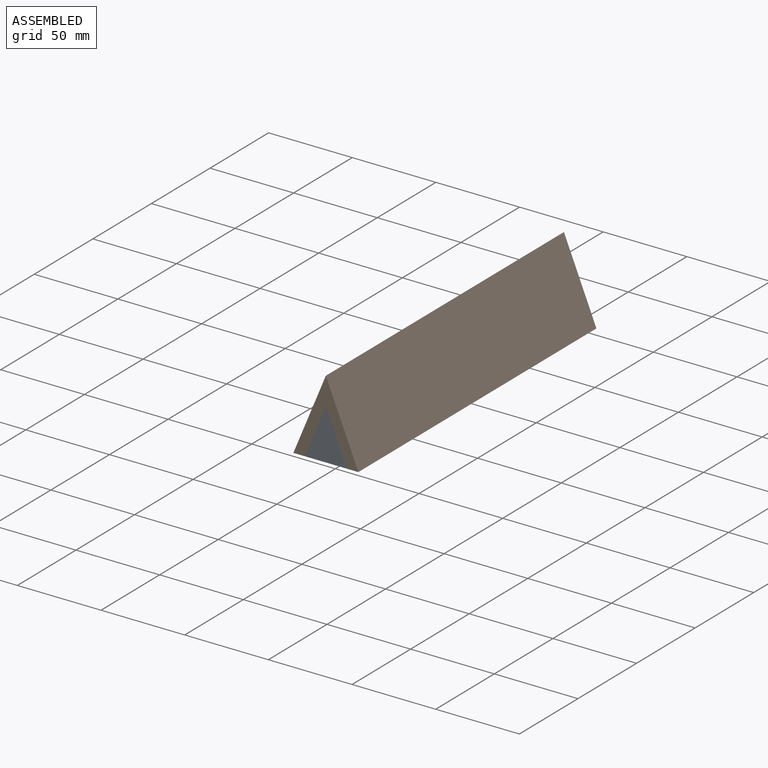
[diagram: assembled view]
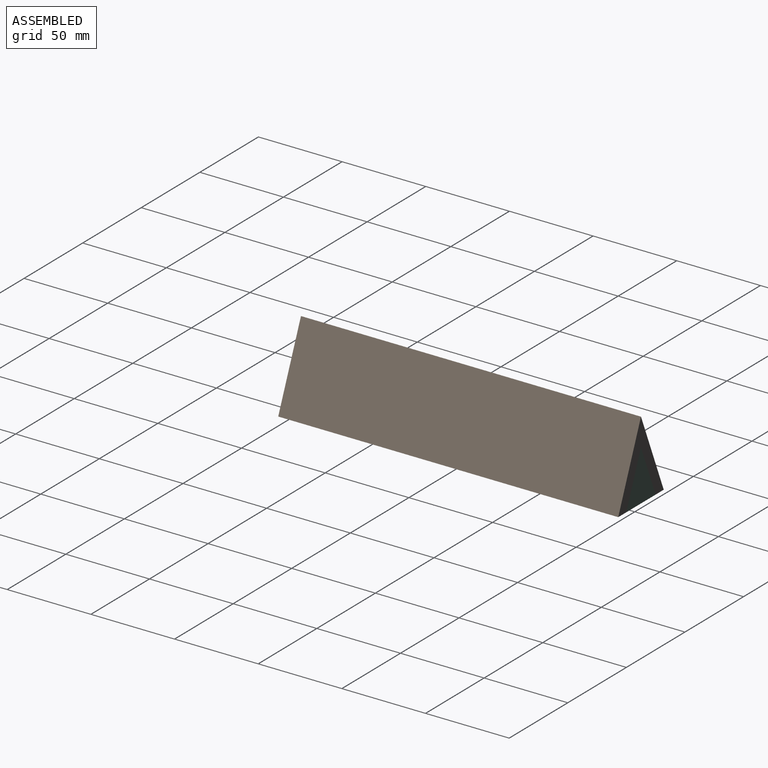
[diagram: assembled view, second angle]
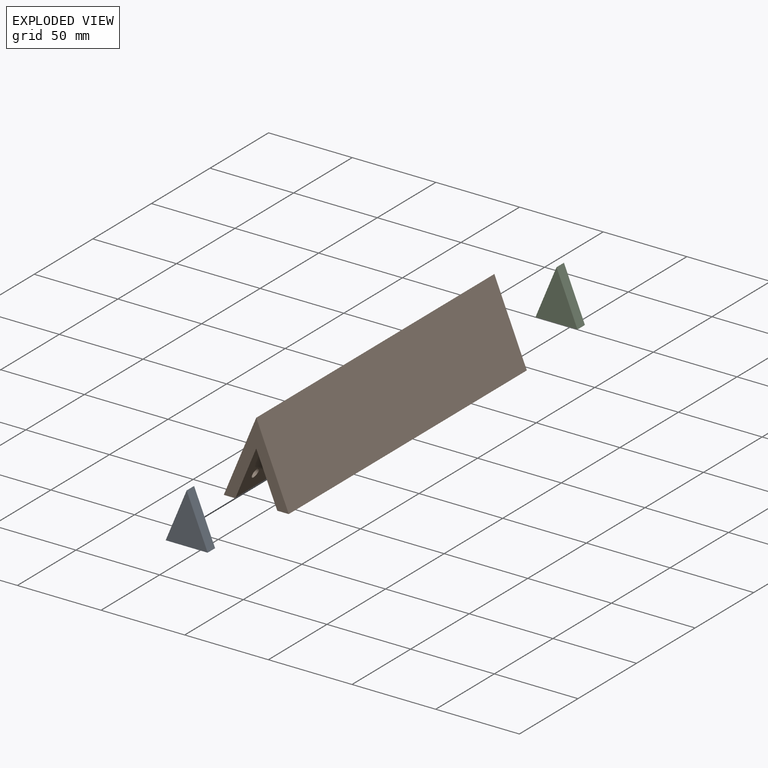
[diagram: exploded view]
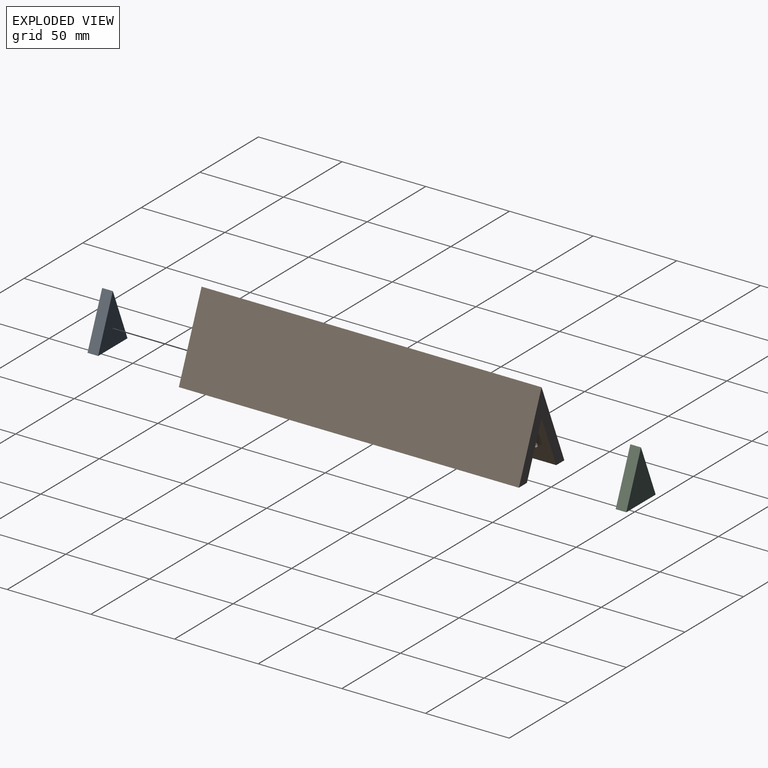
[diagram: exploded view, second angle]
ASSEMBLY  parts=3 mates=2
PART A: 5 faces, bbox 25.1x6.4x30.3 mm
  f0: plane 30.28x12.54mm, normal (0.92,0,0.38), area 208.1mm2, adj f1,f2,f3,f4
  f1: plane 25.08x6.35mm, normal (0,0,-1), area 159.3mm2, adj f0,f2,f3,f4
  f2: plane 30.28x12.54mm, normal (-0.92,0,0.38), area 208.1mm2, adj f0,f1,f3,f4
  f3: plane 30.28x25.08mm, normal (0,-1,0), area 379.7mm2, adj f0,f1,f2
  f4: plane 30.28x25.08mm, normal (0,1,0), area 379.7mm2, adj f0,f1,f2
PART B: 10 faces, bbox 38.8x203.2x46.9 mm
  f0: plane 203.2x6.87mm, normal (0,0,-1), area 1396.6mm2, adj f1,f5,f6,f7
  f1: plane 203.2x30.28mm, normal (0.92,0,-0.38), area 6611.5mm2, adj f0,f2,f6,f7,f8,f9
  f2: plane 203.2x30.28mm, normal (-0.92,0,-0.38), area 6659mm2, adj f1,f3,f6,f7
  f3: plane 203.2x6.87mm, normal (0,0,-1), area 1396.6mm2, adj f2,f4,f6,f7
  f4: plane 203.2x46.87mm, normal (0.92,0,0.38), area 10308.5mm2, adj f3,f5,f6,f7
  f5: plane 203.2x46.87mm, normal (-0.92,0,0.38), area 10261mm2, adj f0,f4,f6,f7,f8,f9
  f6: plane 46.87x38.83mm, normal (0,-1,0), area 530.2mm2, adj f0,f1,f2,f3,f4,f5
  f7: plane 46.87x38.83mm, normal (0,1,0), area 530.2mm2, adj f0,f1,f2,f3,f4,f5
  f8: cylinder r=2.75mm len=7.97mm, axis (-0.92,0,0.38), area 109.7mm2, adj f1,f5
  f9: cylinder r=2.75mm len=7.97mm, axis (-0.92,0,0.38), area 109.7mm2, adj f1,f5
PART C: 5 faces, bbox 25.1x6.4x30.3 mm
  f0: plane 30.28x12.54mm, normal (0.92,0,0.38), area 208.1mm2, adj f1,f2,f3,f4
  f1: plane 25.08x6.35mm, normal (0,0,-1), area 159.3mm2, adj f0,f2,f3,f4
  f2: plane 30.28x12.54mm, normal (-0.92,0,0.38), area 208.1mm2, adj f0,f1,f3,f4
  f3: plane 30.28x25.08mm, normal (0,-1,0), area 379.7mm2, adj f0,f1,f2
  f4: plane 30.28x25.08mm, normal (0,1,0), area 379.7mm2, adj f0,f1,f2
PLACE A t=(-4.05,0.88,-1.31)mm
PLACE B t=(-4.05,0.88,-1.31)mm
PLACE C t=(-4.05,0.88,-1.31)mm
MATE fastened B.f7 <-> C.f4  axis (0,1,0) through (2.22,0.88,13.82)mm
MATE fastened B.f6 <-> A.f3  axis (0,-1,0) through (-10.32,-202.32,13.82)mm
